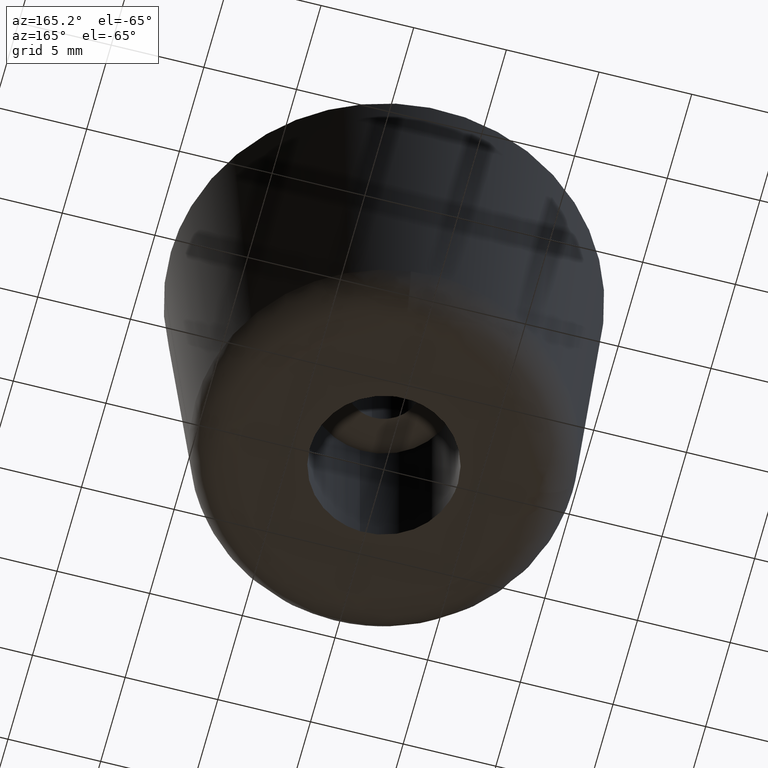
[diagram: clean part render]
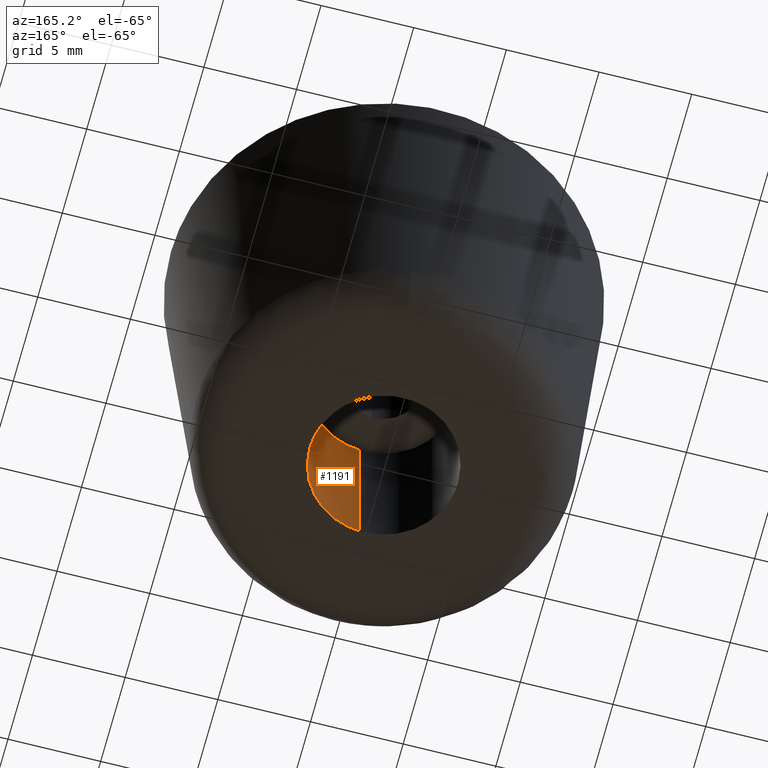
[diagram: same view with one face highlighted and labeled with its STEP entity id]
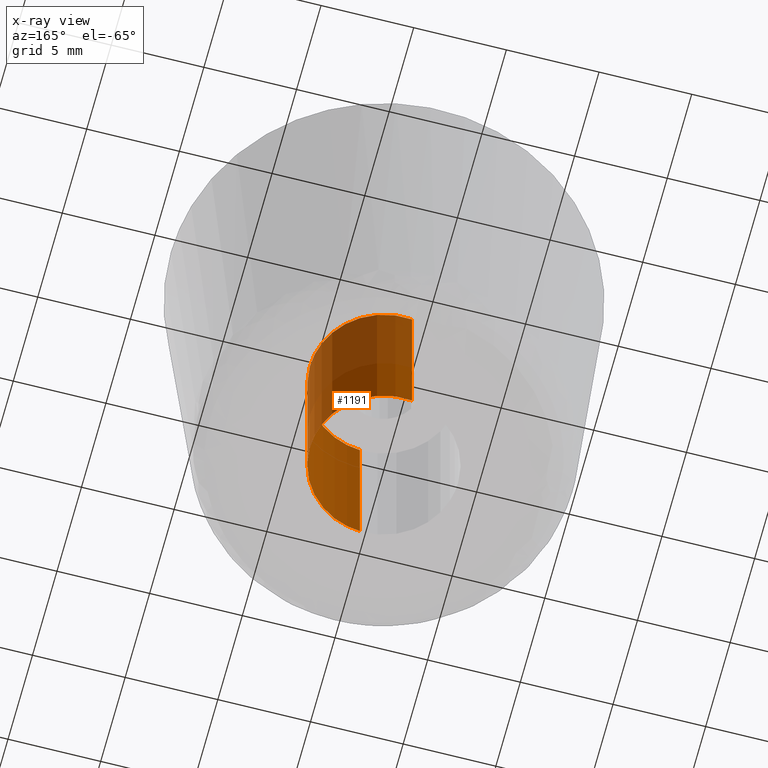
[diagram: x-ray of the same camera — body ghosted, the highlighted face saturated]
A machine part, auxiliary view. The second image highlights one B-rep face of the part: STEP entity #1191.
The next image is the same camera in x-ray: the body ghosted, the highlighted face saturated — about 41% of this face is hidden behind the body in this view.
In plain terms, the highlighted face is a freeform B-spline surface patch.
Its self-contained STEP definition (entity closure, byte-faithful):
#1089=CARTESIAN_POINT('',(-0.472136938627034,3.972038105454666,10.249999999999796));
#1090=CARTESIAN_POINT('',(-0.358458914551911,3.985550461794422,10.249999999999794));
#1091=CARTESIAN_POINT('',(-0.244194158139428,3.992539193687467,10.249999999999799));
#1092=CARTESIAN_POINT('',(3.748345035548039,4.236733351826894,10.249999999999796));
#1093=CARTESIAN_POINT('',(3.992539193687467,0.244194158139428,10.249999999999799));
#1094=CARTESIAN_POINT('',(4.236733351826894,-3.748345035548039,10.249999999999796));
#1095=CARTESIAN_POINT('',(0.244194158139428,-3.992539193687467,10.249999999999799));
#1096=CARTESIAN_POINT('',(-0.472136938627034,3.972038105454666,-0.256249999999996));
#1097=CARTESIAN_POINT('',(-0.358458914551911,3.985550461794422,-0.256249999999996));
#1098=CARTESIAN_POINT('',(-0.244194158139428,3.992539193687467,-0.256249999999996));
#1099=CARTESIAN_POINT('',(3.748345035548039,4.236733351826894,-0.256249999999996));
#1100=CARTESIAN_POINT('',(3.992539193687467,0.244194158139428,-0.256249999999996));
#1101=CARTESIAN_POINT('',(4.236733351826894,-3.748345035548039,-0.256249999999996));
#1102=CARTESIAN_POINT('',(0.244194158139428,-3.992539193687467,-0.256249999999996));
#1110=(BOUNDED_SURFACE()B_SPLINE_SURFACE(2,1,((#1089,#1096),(#1090,#1097),(#1091,#1098),(#1092,#1099),(#1093,#1100),(#1094,#1101),(#1095,#1102)),.UNSPECIFIED.,.F.,.F.,.U.)B_SPLINE_SURFACE_WITH_KNOTS((3,2,2,3),(2,2),(0.0,0.265096679918781,6.892513677888299,13.519930675857820),(0.0,10.506249999999801),.UNSPECIFIED.)GEOMETRIC_REPRESENTATION_ITEM()RATIONAL_B_SPLINE_SURFACE(((0.977505800795127,0.977505800795127),(0.988284271247462,0.988284271247462),(1.0,1.0),(0.707106781186548,0.707106781186548),(1.0,1.0),(0.707106781186548,0.707106781186548),(1.0,1.0)))REPRESENTATION_ITEM('')SURFACE());
#1111=CARTESIAN_POINT('',(-0.472136938642817,3.972038105452789,1.277743E-016));
#1112=VERTEX_POINT('',#1111);
#1113=CARTESIAN_POINT('',(4.0,0.0,0.0));
#1114=VERTEX_POINT('',#1113);
#1115=CARTESIAN_POINT('',(-0.472136938642817,3.972038105452789,1.277743E-016));
#1116=CARTESIAN_POINT('',(-0.236896478623590,4.0,0.0));
#1117=CARTESIAN_POINT('',(0.0,4.0,0.0));
#1118=CARTESIAN_POINT('',(4.000000000000000,4.000000000000000,0.0));
#1119=CARTESIAN_POINT('',(4.0,0.0,0.0));
#1127=(BOUNDED_CURVE()B_SPLINE_CURVE(2,(#1115,#1116,#1117,#1118,#1119),.UNSPECIFIED.,.F.,.U.)B_SPLINE_CURVE_WITH_KNOTS((3,2,3),(0.229562473514301,0.250000000000000,0.500000000000000),.UNSPECIFIED.)CURVE()GEOMETRIC_REPRESENTATION_ITEM()RATIONAL_B_SPLINE_CURVE((0.956026754185253,0.976055948332074,1.0,0.707106781186548,1.0))REPRESENTATION_ITEM(''));
#1128=EDGE_CURVE('',#1112,#1114,#1127,.T.);
#1129=ORIENTED_EDGE('',*,*,#1128,.T.);
#1130=CARTESIAN_POINT('',(0.244194158158791,-3.992539193686283,1.110223E-016));
#1131=VERTEX_POINT('',#1130);
#1132=CARTESIAN_POINT('',(4.0,0.0,0.0));
#1133=CARTESIAN_POINT('',(4.0,-3.762824267586224,0.0));
#1134=CARTESIAN_POINT('',(0.244194158158791,-3.992539193686283,1.110223E-016));
#1142=(BOUNDED_CURVE()B_SPLINE_CURVE(2,(#1132,#1133,#1134),.UNSPECIFIED.,.F.,.U.)B_SPLINE_CURVE_WITH_KNOTS((3,3),(0.500000000000000,0.739332962240295),.UNSPECIFIED.)CURVE()GEOMETRIC_REPRESENTATION_ITEM()RATIONAL_B_SPLINE_CURVE((1.0,0.719603993285126,0.976072041669616))REPRESENTATION_ITEM(''));
#1143=EDGE_CURVE('',#1114,#1131,#1142,.T.);
#1144=ORIENTED_EDGE('',*,*,#1143,.T.);
#1145=CARTESIAN_POINT('',(0.244194158158791,-3.992539193686283,9.999999999999801));
#1146=VERTEX_POINT('',#1145);
#1147=CARTESIAN_POINT('',(0.244194158158791,-3.992539193686283,9.999999999999801));
#1148=CARTESIAN_POINT('',(0.244194158158791,-3.992539193686283,1.110223E-016));
#1149=QUASI_UNIFORM_CURVE('',1,(#1147,#1148),.UNSPECIFIED.,.F.,.U.);
#1150=EDGE_CURVE('',#1146,#1131,#1149,.T.);
#1151=ORIENTED_EDGE('',*,*,#1150,.F.);
#1152=CARTESIAN_POINT('',(4.0,0.0,9.999999999999799));
#1153=VERTEX_POINT('',#1152);
#1154=CARTESIAN_POINT('',(4.0,0.0,9.999999999999799));
#1155=CARTESIAN_POINT('',(4.0,-3.762824267586224,9.999999999999798));
#1156=CARTESIAN_POINT('',(0.244194158158791,-3.992539193686283,9.999999999999801));
#1164=(BOUNDED_CURVE()B_SPLINE_CURVE(2,(#1154,#1155,#1156),.UNSPECIFIED.,.F.,.U.)B_SPLINE_CURVE_WITH_KNOTS((3,3),(0.500000000000000,0.739332962240295),.UNSPECIFIED.)CURVE()GEOMETRIC_REPRESENTATION_ITEM()RATIONAL_B_SPLINE_CURVE((1.0,0.719603993285126,0.976072041669616))REPRESENTATION_ITEM(''));
#1165=EDGE_CURVE('',#1153,#1146,#1164,.T.);
#1166=ORIENTED_EDGE('',*,*,#1165,.F.);
#1167=CARTESIAN_POINT('',(-0.472136938642816,3.972038105452789,9.999999999999799));
#1168=VERTEX_POINT('',#1167);
#1169=CARTESIAN_POINT('',(-0.472136938642816,3.972038105452789,9.999999999999799));
#1170=CARTESIAN_POINT('',(-0.236896478623590,4.0,9.999999999999799));
#1171=CARTESIAN_POINT('',(0.0,4.0,9.999999999999799));
#1172=CARTESIAN_POINT('',(4.000000000000000,4.000000000000000,9.999999999999799));
#1173=CARTESIAN_POINT('',(4.0,0.0,9.999999999999799));
#1181=(BOUNDED_CURVE()B_SPLINE_CURVE(2,(#1169,#1170,#1171,#1172,#1173),.UNSPECIFIED.,.F.,.U.)B_SPLINE_CURVE_WITH_KNOTS((3,2,3),(0.229562473514301,0.250000000000000,0.500000000000000),.UNSPECIFIED.)CURVE()GEOMETRIC_REPRESENTATION_ITEM()RATIONAL_B_SPLINE_CURVE((0.956026754185253,0.976055948332074,1.0,0.707106781186548,1.0))REPRESENTATION_ITEM(''));
#1182=EDGE_CURVE('',#1168,#1153,#1181,.T.);
#1183=ORIENTED_EDGE('',*,*,#1182,.F.);
#1184=CARTESIAN_POINT('',(-0.472136938642816,3.972038105452789,9.999999999999799));
#1185=CARTESIAN_POINT('',(-0.472136938642817,3.972038105452789,1.277743E-016));
#1186=QUASI_UNIFORM_CURVE('',1,(#1184,#1185),.UNSPECIFIED.,.F.,.U.);
#1187=EDGE_CURVE('',#1168,#1112,#1186,.T.);
#1188=ORIENTED_EDGE('',*,*,#1187,.T.);
#1189=EDGE_LOOP('',(#1129,#1144,#1151,#1166,#1183,#1188));
#1190=FACE_OUTER_BOUND('',#1189,.T.);
#1191=ADVANCED_FACE('',(#1190),#1110,.F.);